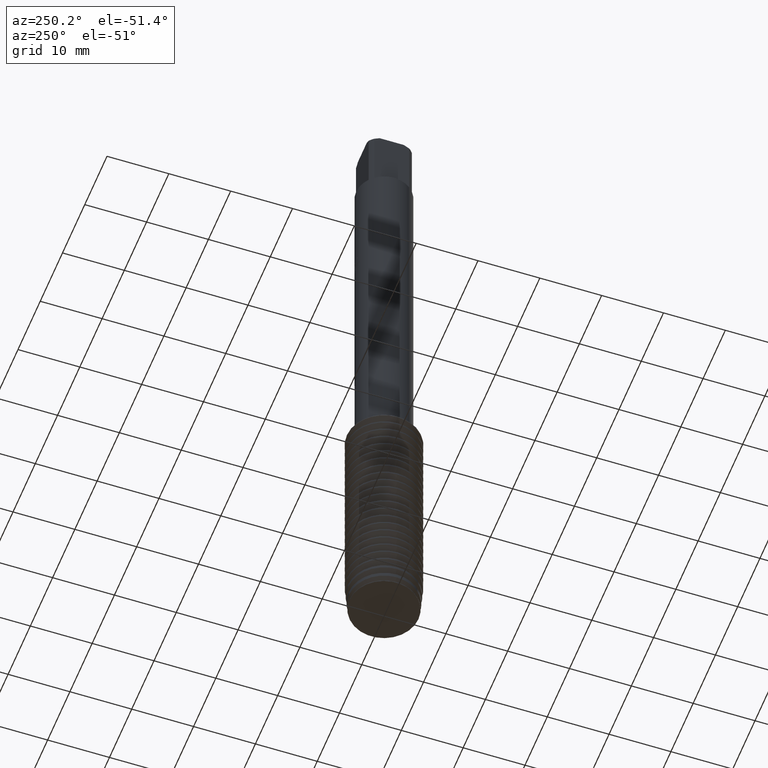
[diagram: clean part render]
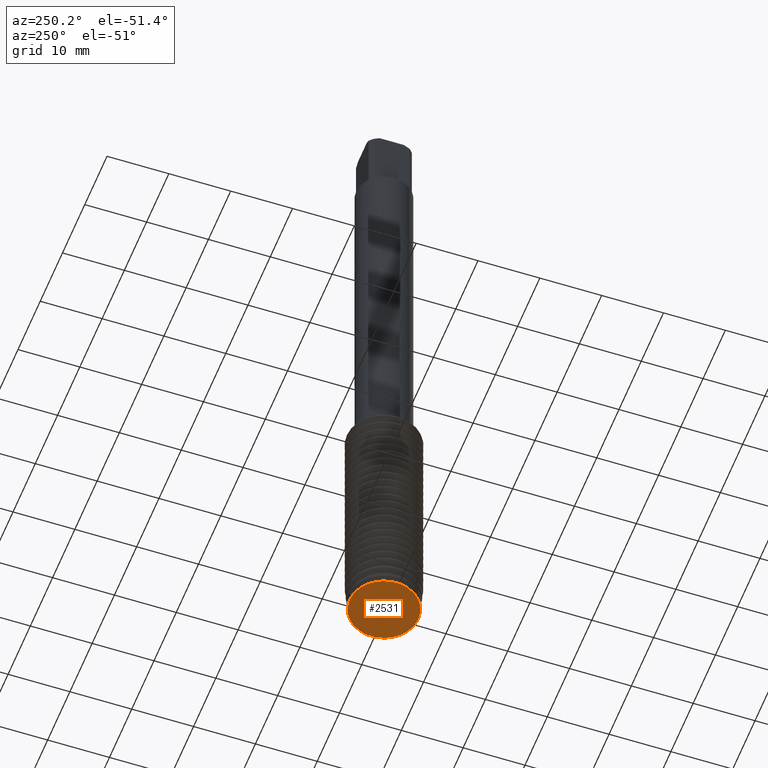
[diagram: same view with one face highlighted and labeled with its STEP entity id]
A machine part, auxiliary view. The second image highlights one B-rep face of the part: STEP entity #2531.
In plain terms, the highlighted planar face has unit normal (0, 0, -1).
Its self-contained STEP definition (entity closure, byte-faithful):
#1673=VERTEX_POINT('',#4035);
#2281=EDGE_CURVE('',#1673,#2429,#4706,.T.);
#2429=VERTEX_POINT('',#4864);
#2531=ADVANCED_FACE('',(#4973),#4974,.T.);
#3115=EDGE_CURVE('',#2429,#1673,#5616,.T.);
#4035=CARTESIAN_POINT('',(6.82718042255975E-016,-5.575,-110.0));
#4706=CIRCLE('',#7785,5.575);
#4864=CARTESIAN_POINT('',(0.0,5.575,-110.0));
#4973=FACE_OUTER_BOUND('',#8197,.T.);
#4974=PLANE('',#8198);
#5616=CIRCLE('',#9097,5.575);
#7785=AXIS2_PLACEMENT_3D('',#11219,#11220,#11221);
#8197=EDGE_LOOP('',(#11520,#11521));
#8198=AXIS2_PLACEMENT_3D('',#11522,#11523,#11524);
#9097=AXIS2_PLACEMENT_3D('',#12325,#12326,#12327);
#11219=CARTESIAN_POINT('',(0.0,0.0,-110.0));
#11220=DIRECTION('',(0.0,0.0,-1.0));
#11221=DIRECTION('',(0.0,1.0,0.0));
#11520=ORIENTED_EDGE('',*,*,#3115,.T.);
#11521=ORIENTED_EDGE('',*,*,#2281,.T.);
#11522=CARTESIAN_POINT('',(0.0,2.7875,-110.0));
#11523=DIRECTION('',(0.0,0.0,-1.0));
#11524=DIRECTION('',(0.0,1.0,0.0));
#12325=CARTESIAN_POINT('',(0.0,0.0,-110.0));
#12326=DIRECTION('',(0.0,0.0,-1.0));
#12327=DIRECTION('',(0.0,1.0,0.0));